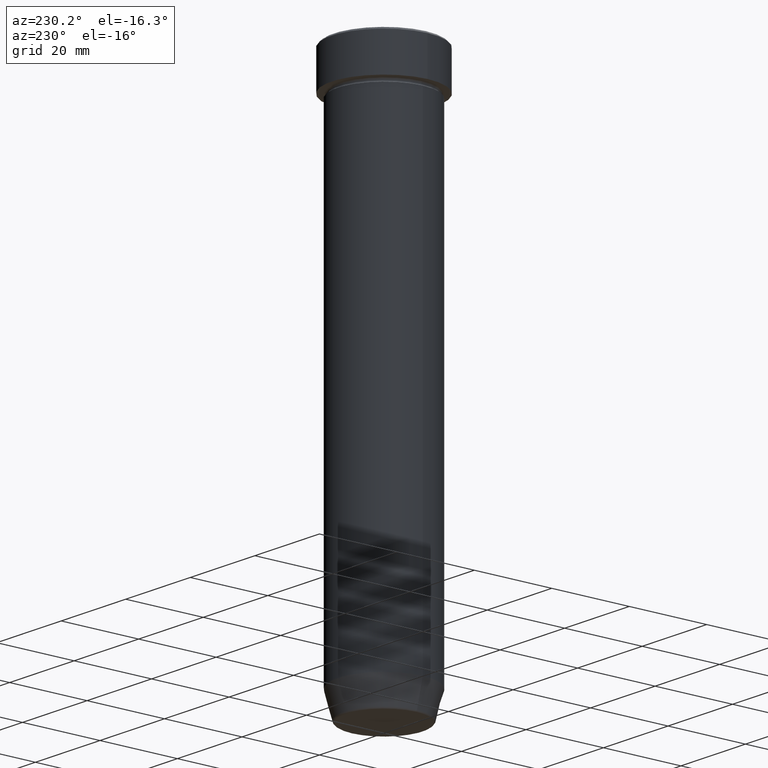
[diagram: clean part render]
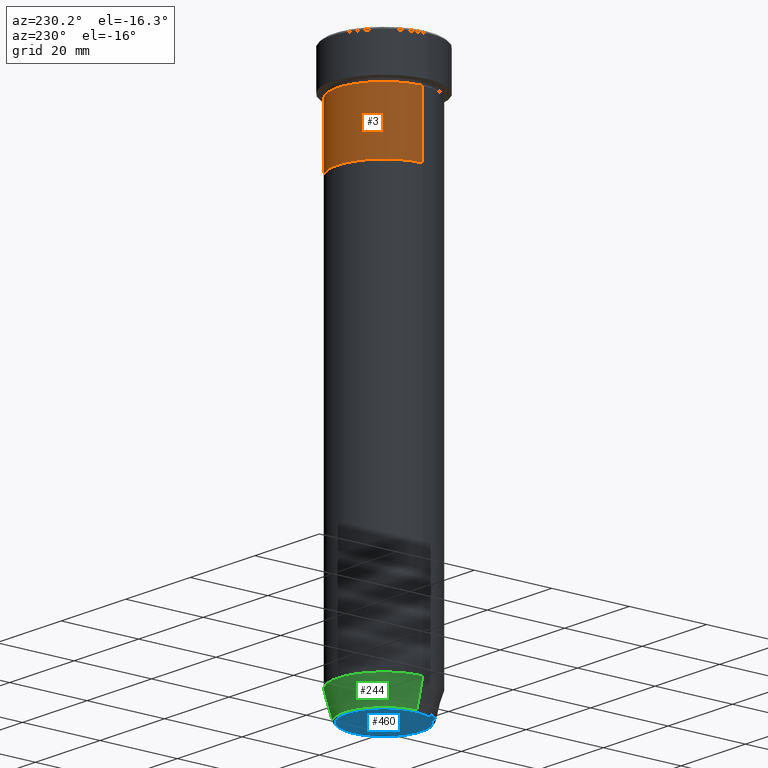
[diagram: same view with three faces highlighted in distinct colors, each labeled with its STEP entity id]
A machine part, auxiliary view with three faces highlighted in distinct colors.
Their STEP definitions:

[orange] entity #3 — the highlighted cylindrical surface (partial cylindrical patch) has radius 12 mm, axis along (-0, -0, 1).
#3 = ADVANCED_FACE ( 'NONE', ( #126 ), #260, .T. ) ;
#9 = VERTEX_POINT ( 'NONE', #337 ) ;
#26 = AXIS2_PLACEMENT_3D ( 'NONE', #81, #308, #402 ) ;
#29 = ORIENTED_EDGE ( 'NONE', *, *, #202, .T. ) ;
#50 = CARTESIAN_POINT ( 'NONE',  ( -12.00000000000000000, 1.469576158976823947E-15, -11.00000000000000000 ) ) ;
#61 = VECTOR ( 'NONE', #486, 1000.000000000000000 ) ;
#81 = CARTESIAN_POINT ( 'NONE',  ( 0.000000000000000000, 0.000000000000000000, -11.00000000000000000 ) ) ;
#86 = CARTESIAN_POINT ( 'NONE',  ( 12.00000000000000000, 0.000000000000000000, -11.00000000000000000 ) ) ;
#97 = VERTEX_POINT ( 'NONE', #86 ) ;
#109 = VERTEX_POINT ( 'NONE', #262 ) ;
#115 = EDGE_CURVE ( 'NONE', #97, #490, #134, .T. ) ;
#123 = AXIS2_PLACEMENT_3D ( 'NONE', #164, #521, #572 ) ;
#126 = FACE_OUTER_BOUND ( 'NONE', #249, .T. ) ;
#129 = LINE ( 'NONE', #305, #61 ) ;
#134 = CIRCLE ( 'NONE', #26, 12.00000000000000000 ) ;
#150 = EDGE_CURVE ( 'NONE', #109, #9, #501, .T. ) ;
#156 = ORIENTED_EDGE ( 'NONE', *, *, #115, .F. ) ;
#164 = CARTESIAN_POINT ( 'NONE',  ( 0.000000000000000000, 0.000000000000000000, 0.000000000000000000 ) ) ;
#202 = EDGE_CURVE ( 'NONE', #9, #490, #289, .T. ) ;
#211 = VECTOR ( 'NONE', #280, 1000.000000000000000 ) ;
#232 = ORIENTED_EDGE ( 'NONE', *, *, #345, .F. ) ;
#249 = EDGE_LOOP ( 'NONE', ( #288, #29, #156, #232 ) ) ;
#260 = CYLINDRICAL_SURFACE ( 'NONE', #123, 12.00000000000000000 ) ;
#262 = CARTESIAN_POINT ( 'NONE',  ( 12.00000000000000000, 0.000000000000000000, -27.00000000000000000 ) ) ;
#280 = DIRECTION ( 'NONE',  ( -0.000000000000000000, -0.000000000000000000, 1.000000000000000000 ) ) ;
#288 = ORIENTED_EDGE ( 'NONE', *, *, #150, .T. ) ;
#289 = LINE ( 'NONE', #510, #211 ) ;
#296 = DIRECTION ( 'NONE',  ( 1.000000000000000000, 0.000000000000000000, 0.000000000000000000 ) ) ;
#305 = CARTESIAN_POINT ( 'NONE',  ( 12.00000000000000000, 0.000000000000000000, 0.000000000000000000 ) ) ;
#308 = DIRECTION ( 'NONE',  ( -0.000000000000000000, -0.000000000000000000, 1.000000000000000000 ) ) ;
#337 = CARTESIAN_POINT ( 'NONE',  ( -12.00000000000000000, 1.469576158976823947E-15, -27.00000000000000000 ) ) ;
#345 = EDGE_CURVE ( 'NONE', #109, #97, #129, .T. ) ;
#365 = AXIS2_PLACEMENT_3D ( 'NONE', #515, #383, #296 ) ;
#383 = DIRECTION ( 'NONE',  ( -0.000000000000000000, -0.000000000000000000, 1.000000000000000000 ) ) ;
#402 = DIRECTION ( 'NONE',  ( 1.000000000000000000, 0.000000000000000000, 0.000000000000000000 ) ) ;
#486 = DIRECTION ( 'NONE',  ( -0.000000000000000000, -0.000000000000000000, 1.000000000000000000 ) ) ;
#490 = VERTEX_POINT ( 'NONE', #50 ) ;
#501 = CIRCLE ( 'NONE', #365, 12.00000000000000000 ) ;
#510 = CARTESIAN_POINT ( 'NONE',  ( -12.00000000000000000, 1.469576158976823947E-15, 0.000000000000000000 ) ) ;
#515 = CARTESIAN_POINT ( 'NONE',  ( 0.000000000000000000, 0.000000000000000000, -27.00000000000000000 ) ) ;
#521 = DIRECTION ( 'NONE',  ( -0.000000000000000000, -0.000000000000000000, 1.000000000000000000 ) ) ;
#572 = DIRECTION ( 'NONE',  ( 1.000000000000000000, 0.000000000000000000, 0.000000000000000000 ) ) ;

[blue] entity #460 — the highlighted planar face has unit normal (0, -0, 1).
#1 = DIRECTION ( 'NONE',  ( 0.000000000000000000, -0.000000000000000000, 1.000000000000000000 ) ) ;
#55 = EDGE_LOOP ( 'NONE', ( #390, #328 ) ) ;
#57 = CARTESIAN_POINT ( 'NONE',  ( -9.740692158992656502, 1.222463696683474604E-15, -140.0000000000000000 ) ) ;
#107 = CARTESIAN_POINT ( 'NONE',  ( 0.000000000000000000, 0.000000000000000000, -140.0000000000000000 ) ) ;
#120 = DIRECTION ( 'NONE',  ( 0.000000000000000000, 0.000000000000000000, -1.000000000000000000 ) ) ;
#122 = DIRECTION ( 'NONE',  ( 1.000000000000000000, 0.000000000000000000, 0.000000000000000000 ) ) ;
#145 = CARTESIAN_POINT ( 'NONE',  ( 0.000000000000000000, 1.102182119232618227E-14, -140.0000000000000000 ) ) ;
#183 = CIRCLE ( 'NONE', #235, 9.740692158992656502 ) ;
#217 = DIRECTION ( 'NONE',  ( 1.000000000000000000, 0.000000000000000000, 0.000000000000000000 ) ) ;
#222 = CIRCLE ( 'NONE', #404, 9.740692158992656502 ) ;
#234 = AXIS2_PLACEMENT_3D ( 'NONE', #145, #1, #462 ) ;
#235 = AXIS2_PLACEMENT_3D ( 'NONE', #529, #120, #122 ) ;
#320 = FACE_OUTER_BOUND ( 'NONE', #55, .T. ) ;
#328 = ORIENTED_EDGE ( 'NONE', *, *, #558, .T. ) ;
#381 = VERTEX_POINT ( 'NONE', #415 ) ;
#390 = ORIENTED_EDGE ( 'NONE', *, *, #578, .T. ) ;
#404 = AXIS2_PLACEMENT_3D ( 'NONE', #107, #419, #217 ) ;
#415 = CARTESIAN_POINT ( 'NONE',  ( 9.740692158992656502, 0.000000000000000000, -140.0000000000000000 ) ) ;
#416 = PLANE ( 'NONE',  #234 ) ;
#419 = DIRECTION ( 'NONE',  ( 0.000000000000000000, 0.000000000000000000, -1.000000000000000000 ) ) ;
#460 = ADVANCED_FACE ( 'NONE', ( #320 ), #416, .F. ) ;
#462 = DIRECTION ( 'NONE',  ( 1.000000000000000000, 0.000000000000000000, 0.000000000000000000 ) ) ;
#529 = CARTESIAN_POINT ( 'NONE',  ( 0.000000000000000000, 0.000000000000000000, -140.0000000000000000 ) ) ;
#535 = VERTEX_POINT ( 'NONE', #57 ) ;
#558 = EDGE_CURVE ( 'NONE', #535, #381, #183, .T. ) ;
#578 = EDGE_CURVE ( 'NONE', #381, #535, #222, .T. ) ;

[green] entity #244 — the highlighted conical surface has half-angle 15 deg.
#2 = ORIENTED_EDGE ( 'NONE', *, *, #179, .F. ) ;
#17 = EDGE_LOOP ( 'NONE', ( #429, #203, #124, #2 ) ) ;
#18 = DIRECTION ( 'NONE',  ( -0.000000000000000000, -0.000000000000000000, 1.000000000000000000 ) ) ;
#37 = EDGE_CURVE ( 'NONE', #151, #413, #534, .T. ) ;
#58 = VERTEX_POINT ( 'NONE', #397 ) ;
#108 = CARTESIAN_POINT ( 'NONE',  ( 12.00000000000000000, 0.000000000000000000, -133.0000000000000000 ) ) ;
#124 = ORIENTED_EDGE ( 'NONE', *, *, #37, .F. ) ;
#130 = DIRECTION ( 'NONE',  ( 0.2588190451025214611, 0.000000000000000000, 0.9659258262890679791 ) ) ;
#149 = AXIS2_PLACEMENT_3D ( 'NONE', #541, #538, #353 ) ;
#151 = VERTEX_POINT ( 'NONE', #108 ) ;
#152 = FACE_OUTER_BOUND ( 'NONE', #17, .T. ) ;
#154 = VECTOR ( 'NONE', #130, 1000.000000000000114 ) ;
#176 = CARTESIAN_POINT ( 'NONE',  ( 10.12435565298213369, 0.000000000000000000, -140.0000000000000000 ) ) ;
#179 = EDGE_CURVE ( 'NONE', #58, #151, #445, .T. ) ;
#203 = ORIENTED_EDGE ( 'NONE', *, *, #284, .T. ) ;
#204 = DIRECTION ( 'NONE',  ( 1.000000000000000000, 0.000000000000000000, 0.000000000000000000 ) ) ;
#219 = CARTESIAN_POINT ( 'NONE',  ( -10.22365507213718416, 1.360806402472382153E-15, -139.6294095225512706 ) ) ;
#244 = ADVANCED_FACE ( 'NONE', ( #152 ), #317, .T. ) ;
#261 = LINE ( 'NONE', #393, #272 ) ;
#272 = VECTOR ( 'NONE', #597, 1000.000000000000114 ) ;
#284 = EDGE_CURVE ( 'NONE', #321, #413, #261, .T. ) ;
#285 = DIRECTION ( 'NONE',  ( -1.000000000000000000, 0.000000000000000000, 0.000000000000000000 ) ) ;
#317 = CONICAL_SURFACE ( 'NONE', #536, 10.12435565298213369, 0.2617993877991502405 ) ;
#321 = VERTEX_POINT ( 'NONE', #219 ) ;
#346 = CIRCLE ( 'NONE', #554, 10.22365507213718416 ) ;
#353 = DIRECTION ( 'NONE',  ( 1.000000000000000000, 0.000000000000000000, 0.000000000000000000 ) ) ;
#363 = EDGE_CURVE ( 'NONE', #58, #321, #346, .T. ) ;
#393 = CARTESIAN_POINT ( 'NONE',  ( -10.12435565298213369, 1.239875974385398152E-15, -140.0000000000000000 ) ) ;
#397 = CARTESIAN_POINT ( 'NONE',  ( 10.22365507213718416, 0.000000000000000000, -139.6294095225512706 ) ) ;
#413 = VERTEX_POINT ( 'NONE', #552 ) ;
#429 = ORIENTED_EDGE ( 'NONE', *, *, #363, .T. ) ;
#445 = LINE ( 'NONE', #176, #154 ) ;
#492 = CARTESIAN_POINT ( 'NONE',  ( 0.000000000000000000, 0.000000000000000000, -139.6294095225512706 ) ) ;
#514 = CARTESIAN_POINT ( 'NONE',  ( 0.000000000000000000, 0.000000000000000000, -140.0000000000000000 ) ) ;
#534 = CIRCLE ( 'NONE', #149, 12.00000000000000000 ) ;
#536 = AXIS2_PLACEMENT_3D ( 'NONE', #514, #18, #204 ) ;
#538 = DIRECTION ( 'NONE',  ( -0.000000000000000000, -0.000000000000000000, 1.000000000000000000 ) ) ;
#541 = CARTESIAN_POINT ( 'NONE',  ( 0.000000000000000000, 0.000000000000000000, -133.0000000000000000 ) ) ;
#549 = DIRECTION ( 'NONE',  ( -0.000000000000000000, -0.000000000000000000, 1.000000000000000000 ) ) ;
#552 = CARTESIAN_POINT ( 'NONE',  ( -12.00000000000000000, 1.469576158976823947E-15, -133.0000000000000000 ) ) ;
#554 = AXIS2_PLACEMENT_3D ( 'NONE', #492, #549, #285 ) ;
#597 = DIRECTION ( 'NONE',  ( -0.2588190451025214611, 3.169619151431774186E-17, 0.9659258262890679791 ) ) ;